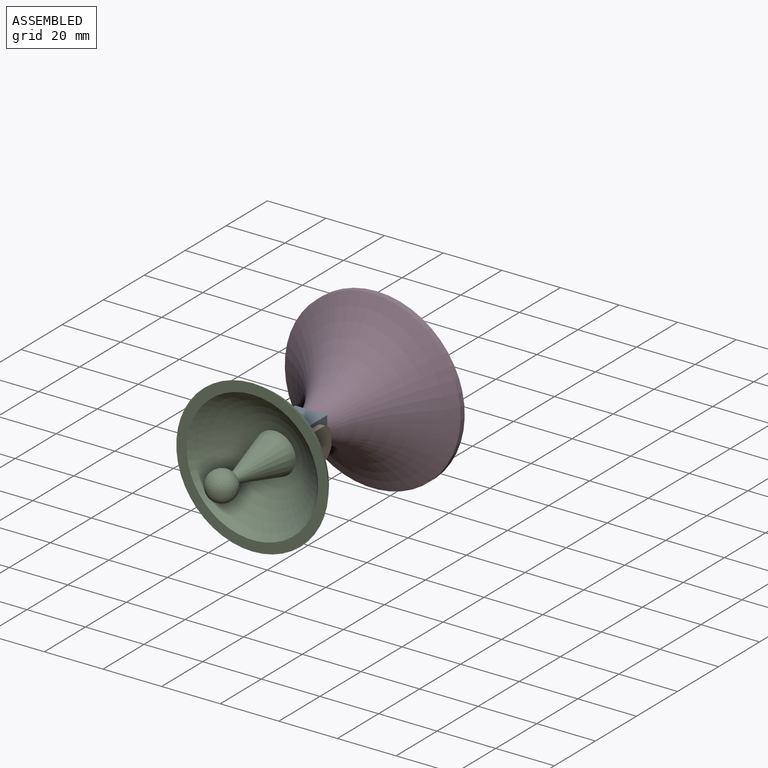
[diagram: assembled view]
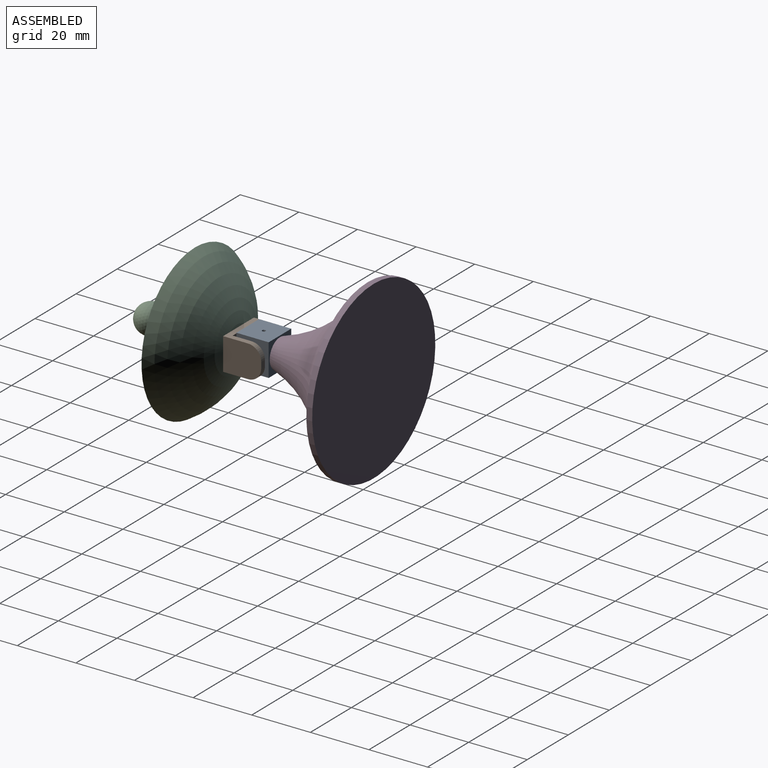
[diagram: assembled view, second angle]
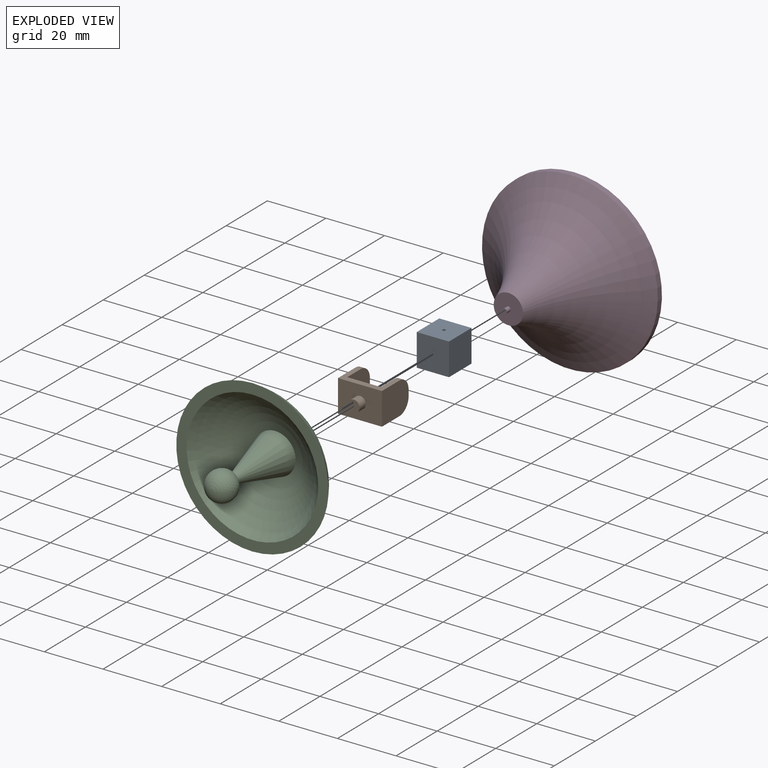
[diagram: exploded view]
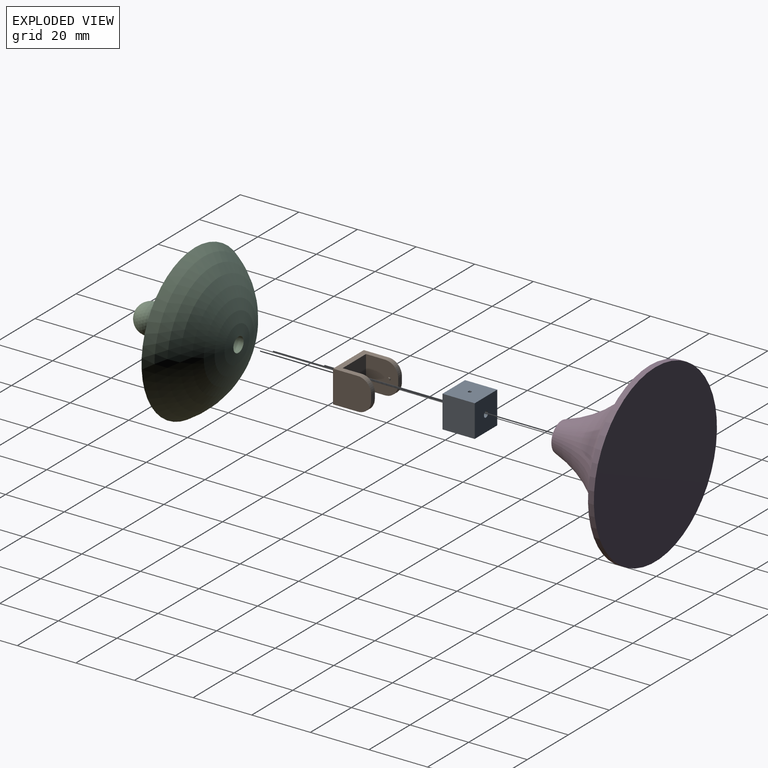
[diagram: exploded view, second angle]
ASSEMBLY  parts=4 mates=3
PART A: 18 faces, bbox 11x11x11 mm
  f0: plane 11x11mm, normal (1,0,0), area 120mm2, adj f2,f3,f4,f5,f13,f14,f15,f16
  f1: plane 11x11mm, normal (-1,0,0), area 120mm2, adj f2,f3,f4,f5,f8,f9,f10,f11
  f2: plane 11x11mm, normal (0,-1,0), area 121mm2, adj f0,f1,f4,f5
  f3: plane 11x11mm, normal (0,1,0), area 121mm2, adj f0,f1,f4,f5
  f4: plane 11x11mm, normal (0,0,1), area 121mm2, adj f0,f1,f2,f3
  f5: plane 11x11mm, normal (0,0,-1), area 117.9mm2, adj f0,f1,f2,f3,f6
  f6: cylinder r=1mm len=2mm, axis (0,0,1), area 12.6mm2, adj f5,f7
  f7: plane 2x2mm, normal (0,0,-1), area 3.1mm2, adj f6
  f8: plane 1x1mm, normal (0,0,1), area 1mm2, adj f1,f9,f11,f12
  f9: plane 1x1mm, normal (0,1,0), area 1mm2, adj f1,f8,f10,f12
  f10: plane 1x1mm, normal (0,0,-1), area 1mm2, adj f1,f9,f11,f12
  f11: plane 1x1mm, normal (0,-1,0), area 1mm2, adj f1,f8,f10,f12
  f12: plane 1x1mm, normal (-1,0,0), area 1mm2, adj f8,f9,f10,f11
  f13: plane 1x0.8mm, normal (0,1,0), area 0.8mm2, adj f0,f14,f16,f17
  f14: plane 1x0.8mm, normal (0,0,-1), area 0.8mm2, adj f0,f13,f15,f17
  f15: plane 1x0.8mm, normal (0,-1,0), area 0.8mm2, adj f0,f14,f16,f17
  f16: plane 1x0.8mm, normal (0,0,1), area 0.8mm2, adj f0,f13,f15,f17
  f17: plane 1x1mm, normal (1,0,0), area 1mm2, adj f13,f14,f15,f16
PART B: 20 faces, bbox 15x16x11 mm
  f0: plane 2x1.8mm, normal (0,1,0), area 3.6mm2, adj f7,f9,f11,f17
  f1: plane 15x8.5mm, normal (0,0,-1), area 53.4mm2, adj f4,f5,f6,f7,f10,f11,f14,f17
  f2: plane 15x8.5mm, normal (0,0,1), area 53.4mm2, adj f4,f5,f6,f7,f8,f9,f14,f17
  f3: plane 2x1.8mm, normal (0,1,0), area 3.6mm2, adj f5,f8,f10,f14
  f4: plane 11.4x11mm, normal (0,1,0), area 125.4mm2, adj f1,f2,f14,f17
  f5: plane 13x11mm, normal (-1,0,0), area 134.3mm2, adj f1,f2,f3,f6,f8,f10
  f6: plane 15x11mm, normal (0,-1,0), area 152.4mm2, adj f1,f2,f5,f7,f12
  f7: plane 13x11mm, normal (1,0,0), area 134.3mm2, adj f0,f1,f2,f6,f9,f11
  f8: cylinder r=4.5mm len=4.5mm, axis (-1,0,0), area 12.7mm2, adj f2,f3,f5,f14
  f9: cylinder r=4.5mm len=4.5mm, axis (-1,0,0), area 12.7mm2, adj f0,f2,f7,f17
  f10: cylinder r=4.5mm len=4.5mm, axis (1,0,0), area 12.7mm2, adj f1,f3,f5,f14
  f11: cylinder r=4.5mm len=4.5mm, axis (1,0,0), area 12.7mm2, adj f0,f1,f7,f17
  f12: cylinder r=2mm len=4mm, axis (0,-1,0), area 37.7mm2, adj f6,f13
  f13: plane 4x4mm, normal (0,-1,0), area 12.6mm2, adj f12
  f14: plane 11x11mm, normal (1,0,0), area 111.7mm2, adj f1,f2,f3,f4,f8,f10,f16
  f15: plane 0.9x0.9mm, normal (1,0,0), area 0.6mm2, adj f16
  f16: cylinder r=0.45mm len=0.9mm, axis (-1,0,0), area 1.4mm2, adj f14,f15
  f17: plane 11x11mm, normal (-1,0,0), area 111.7mm2, adj f0,f1,f2,f4,f9,f11,f18
  f18: cylinder r=0.45mm len=0.9mm, axis (1,0,0), area 1.4mm2, adj f17,f19
  f19: plane 0.9x0.9mm, normal (-1,0,0), area 0.6mm2, adj f18
PART C: 7 faces, bbox 52x34.9x52 mm
  f0: sphere r=27mm, area 1879.7mm2, adj f1,f4
  f1: plane 51.96x51.96mm, normal (0,-1,0), area 537.2mm2, adj f0,f2
  f2: sphere r=30mm, area 2807.8mm2, adj f1,f5
  f3: sphere r=5mm, area 308.8mm2, adj f4
  f4: cone r=1.29mm half-angle=15deg, axis (0,1,0), area 572.4mm2, adj f0,f3
  f5: cylinder r=2.5mm len=5mm, axis (0,1,0), area 53.3mm2, adj f2,f6
  f6: plane 5x5mm, normal (0,1,0), area 19.6mm2, adj f5
PART D: 6 faces, bbox 114.4x114.4x50 mm
  f0: plane 10x10mm, normal (0,0,1), area 76.5mm2, adj f1,f4
  f1: torus R=52.86mm, axis (0,0,1), area 3900.1mm2, adj f0,f2
  f2: cylinder r=30mm len=60mm, axis (0,0,1), area 377mm2, adj f1,f3
  f3: plane 60x60mm, normal (0,0,-1), area 2827.4mm2, adj f2
  f4: cylinder r=0.8mm len=1.8mm, axis (0,0,-1), area 9mm2, adj f0,f5
  f5: plane 1.6x1.6mm, normal (0,0,1), area 2mm2, adj f4
PLACE A rot(axis=(0.58,-0.58,0.58),120deg) t=(15.22,38.26,-28.39)mm
PLACE B t=(15.42,4.26,-64.89)mm
PLACE C t=(15.42,4.36,-64.89)mm
PLACE D rot(axis=(0.58,-0.58,0.58),120deg) t=(15.22,38.26,-28.39)mm
MATE revolute D.f1 <-> A.f6  axis (0,-1,0) through (15.22,8.26,-28.39)mm
MATE revolute A.f3 <-> B.f9  axis (-1,0,0) through (9.72,2.76,-28.39)mm
MATE revolute B.f12 <-> C.f4  axis (0,-1,0) through (15.42,-5.74,-29.39)mm
